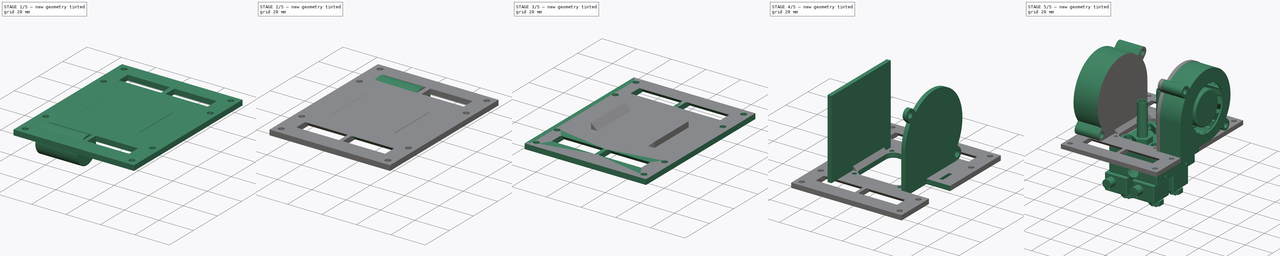
[diagram: build sequence overview — one tinted view per stage of 5, left to right]
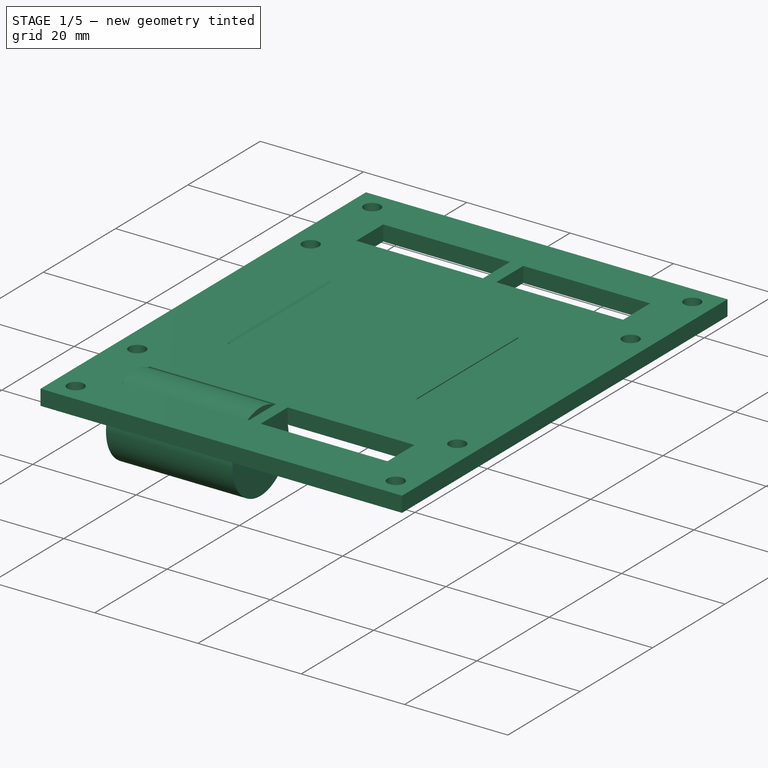
[diagram: stage 1 of 5 — iso view after this stage's code; geometry added in this stage tinted green]
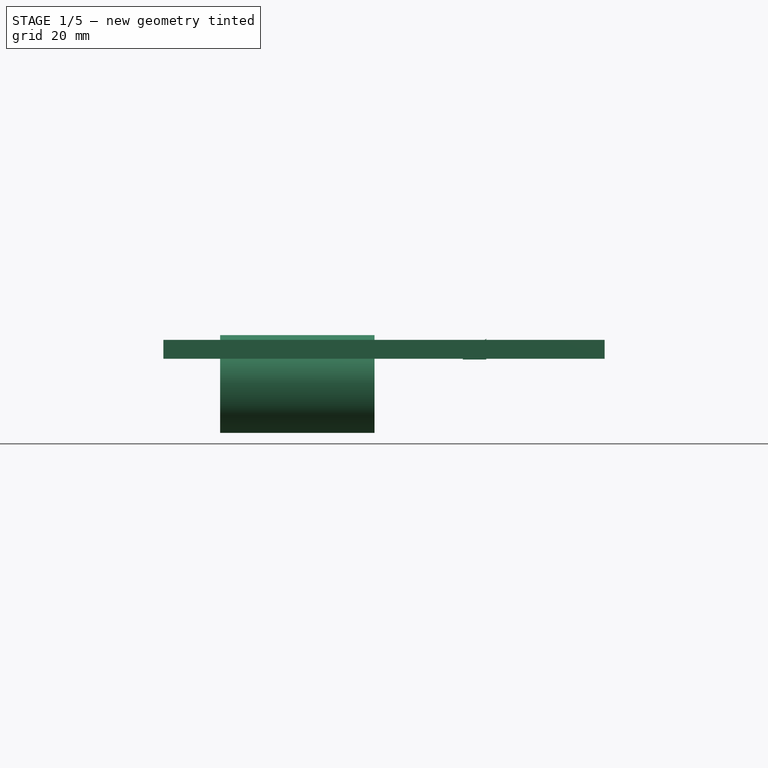
[diagram: stage 1 of 5 — front view after this stage's code; geometry added in this stage tinted green]
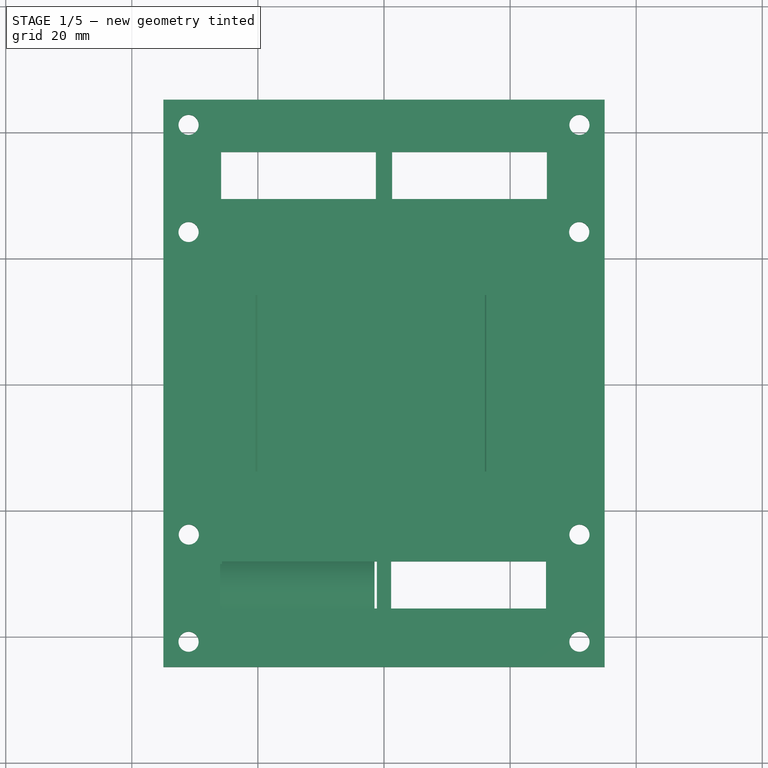
[diagram: stage 1 of 5 — top view after this stage's code; geometry added in this stage tinted green]
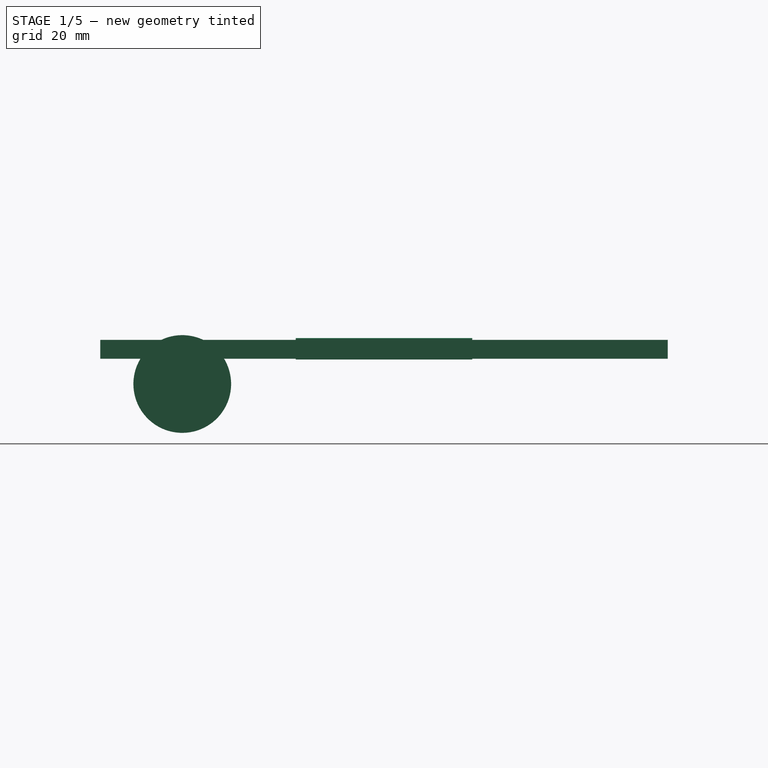
[diagram: stage 1 of 5 — right view after this stage's code; geometry added in this stage tinted green]
FCSTD DOCUMENT  (FreeCAD 0.16R4945 (Git))
Label: Kraken_Carriage
License: All rights reserved
LicenseURL: http://es.wikipedia.org/wiki/Todos_los_derechos_reservados
objects: Sketcher::SketchObject×8, App::FeaturePython×8, PartDesign::Pocket×5, Part::Cylinder×4, Part::Cut×4, PartDesign::Pad×3, Part::Compound×2, Part::FeaturePython×1, App::DocumentObjectGroup×1
note: 35 computed .brp shape members not serialized (recipe doc carries the construction recipe); baked Part::Feature solids carry a one-line shape summary decoded from their .brp

FEATURE [Sketcher::SketchObject] Sketch
  sketch-geometry (4):
    g0: LineSegment StartX=-35 StartY=45 StartZ=0 EndX=35 EndY=45 EndZ=0
    g1: LineSegment StartX=35 StartY=45 StartZ=0 EndX=35 EndY=-45 EndZ=0
    g2: LineSegment StartX=35 StartY=-45 StartZ=0 EndX=-35 EndY=-45 EndZ=0
    g3: LineSegment StartX=-35 StartY=-45 StartZ=0 EndX=-35 EndY=45 EndZ=0
  constraints (11):
    c: Coincident(g0,g1)
    c: Coincident(g1,g2)
    c: Coincident(g2,g3)
    c: Coincident(g3,g0)
    c: Horizontal(g0)
    c: Horizontal(g2)
    c: Vertical(g1)
    c: Vertical(g3)
    c: Symmetric(g0,g1,g-1)
    c: DistanceX(g0) = 70
    c: DistanceY(g1) = -90
FEATURE [PartDesign::Pad] Pad
  Length = 3
  Length2 = 100
  Sketch = -> Sketch
  Type = 0
FEATURE [Sketcher::SketchObject] Sketch001
  Placement = pos=(0,0,3) rot=(0,0,1;0rad)
  Support = -> Pad [Face6]
  sketch-geometry (24):
    g0: LineSegment StartX=-25.8394 StartY=36.6871 StartZ=0 EndX=-1.28258 EndY=36.6871 EndZ=0
    g1: LineSegment StartX=-1.28258 StartY=36.6871 StartZ=0 EndX=-1.28258 EndY=29.2169 EndZ=0
    g2: LineSegment StartX=-1.28258 StartY=29.2169 StartZ=0 EndX=-25.8394 EndY=29.2169 EndZ=0
    g3: LineSegment StartX=-25.8394 StartY=29.2169 StartZ=0 EndX=-25.8394 EndY=36.6871 EndZ=0
    g4: LineSegment StartX=1.28258 StartY=36.6871 StartZ=0 EndX=25.8394 EndY=36.6871 EndZ=0
    g5: LineSegment StartX=25.8394 StartY=36.6871 StartZ=0 EndX=25.8394 EndY=29.2169 EndZ=0
    g6: LineSegment StartX=25.8394 StartY=29.2169 StartZ=0 EndX=1.28258 EndY=29.2169 EndZ=0
    g7: LineSegment StartX=1.28258 StartY=29.2169 StartZ=0 EndX=1.28258 EndY=36.6871 EndZ=0
    g8: LineSegment StartX=-25.6951 StartY=-28.2572 StartZ=0 EndX=-1.1383 EndY=-28.2572 EndZ=0
    g9: LineSegment StartX=-1.1383 StartY=-28.2572 StartZ=0 EndX=-1.1383 EndY=-35.7275 EndZ=0
    g10: LineSegment StartX=-1.1383 StartY=-35.7275 StartZ=0 EndX=-25.6951 EndY=-35.7275 EndZ=0
    g11: LineSegment StartX=-25.6951 StartY=-35.7275 StartZ=0 EndX=-25.6951 EndY=-28.2572 EndZ=0
    g12: LineSegment StartX=1.1383 StartY=-28.2572 StartZ=0 EndX=25.6951 EndY=-28.2572 EndZ=0
    g13: LineSegment StartX=25.6951 StartY=-28.2572 StartZ=0 EndX=25.6951 EndY=-35.7275 EndZ=0
    g14: LineSegment StartX=25.6951 StartY=-35.7275 StartZ=0 EndX=1.1383 EndY=-35.7275 EndZ=0
    g15: LineSegment StartX=1.1383 StartY=-35.7275 StartZ=0 EndX=1.1383 EndY=-28.2572 EndZ=0
    g16: Circle CenterX=-31 CenterY=41 CenterZ=0 NormalX=0 NormalY=0 NormalZ=1 Radius=1.6
    g17: Circle CenterX=31 CenterY=40.9976 CenterZ=0 NormalX=0 NormalY=0 NormalZ=1 Radius=1.6
    g18: Circle CenterX=30.9627 CenterY=23.9976 CenterZ=0 NormalX=0 NormalY=0 NormalZ=1 Radius=1.6
    g19: Circle CenterX=-30.9627 CenterY=-23.9976 CenterZ=0 NormalX=0 NormalY=0 NormalZ=1 Radius=1.6
    g20: Circle CenterX=-31 CenterY=-40.9976 CenterZ=0 NormalX=0 NormalY=0 NormalZ=1 Radius=1.6
    g21: Circle CenterX=31 CenterY=-24.0024 CenterZ=0 NormalX=0 NormalY=0 NormalZ=1 Radius=1.6
    g22: Circle CenterX=31 CenterY=-41 CenterZ=0 NormalX=0 NormalY=0 NormalZ=1 Radius=1.6
    g23: Circle CenterX=-31 CenterY=24.0024 CenterZ=0 NormalX=0 NormalY=0 NormalZ=1 Radius=1.6
  constraints (56):
    c: Coincident(g0,g1)
    c: Coincident(g1,g2)
    c: Coincident(g2,g3)
    c: Coincident(g3,g0)
    c: Horizontal(g0)
    c: Horizontal(g2)
    c: Vertical(g1)
    c: Vertical(g3)
    c: Coincident(g4,g5)
    c: Coincident(g5,g6)
    c: Coincident(g6,g7)
    c: Coincident(g7,g4)
    c: Horizontal(g4)
    c: Horizontal(g6)
    c: Vertical(g5)
    c: Vertical(g7)
    c: Coincident(g8,g9)
    c: Coincident(g9,g10)
    c: Coincident(g10,g11)
    c: Coincident(g11,g8)
    c: Horizontal(g8)
    c: Horizontal(g10)
    c: Vertical(g9)
    c: Vertical(g11)
    c: Coincident(g12,g13)
    c: Coincident(g13,g14)
    c: Coincident(g14,g15)
    c: Coincident(g15,g12)
    c: Horizontal(g12)
    c: Horizontal(g14)
    c: Vertical(g13)
    c: Vertical(g15)
    c: Radius(g16) = 1.6
    c: Equal(g18,g17)
    c: Equal(g17,g19)
    c: Equal(g19,g20)
    c: Equal(g20,g22)
    c: Equal(g22,g21)
    c: Symmetric(g20,g17,g-1)
    c: Symmetric(g16,g22,g-1)
    c: Symmetric(g18,g19,g-1)
    c: Equal(g0,g4)
    c: Equal(g4,g8)
    c: Equal(g8,g12)
    c: Equal(g15,g5)
    c: Equal(g5,g1)
    c: Equal(g1,g9)
    c: Symmetric(g0,g4,g-2)
    c: Symmetric(g8,g12,g-2)
    c: Distance(g20,g22) = 62
    c: Distance(g19,g20) = 17
    c: Distance(g21,g18) = 48
    c: Radius(g23) = 1.6
    c: DistanceX(g-1,g22) = 31
    c: DistanceX(g23,g20) = 0
    c: Distance(g23,g19) = 48
FEATURE [PartDesign::Pocket] Pocket
  Length = 5
  Sketch = -> Sketch001
  Type = 1
FEATURE [Part::Cylinder] Cylinder  label="Cilindro"
  Angle = 360
  Height = 24.5
  Placement = pos=(-26,-32,-4) rot=(0,1,0;1.5708rad)
  Radius = 7.75
FEATURE [Sketcher::SketchObject] Sketch008
  Placement = pos=(0,-14,0) rot=(-1,0,0;4.71239rad)
  sketch-geometry (6):
    g0: LineSegment StartX=-20.4015 StartY=-0.118897 StartZ=0 EndX=-16.7428 EndY=-0.118897 EndZ=0
    g1: LineSegment StartX=-20.4015 StartY=-0.118897 StartZ=0 EndX=-20.4015 EndY=3.28896 EndZ=0
    g2: LineSegment StartX=-20.4015 StartY=3.28896 StartZ=0 EndX=-16.7428 EndY=-0.118897 EndZ=0
    g3: LineSegment StartX=12.4678 StartY=-0.104017 StartZ=0 EndX=16.2231 EndY=-0.104017 EndZ=0
    g4: LineSegment StartX=16.2231 StartY=-0.104017 StartZ=0 EndX=16.2231 EndY=3.19712 EndZ=0
    g5: LineSegment StartX=12.4678 StartY=-0.104017 StartZ=0 EndX=16.2231 EndY=3.19712 EndZ=0
  constraints (12):
    c: Horizontal(g0)
    c: Coincident(g1,g0)
    c: Vertical(g1)
    c: Coincident(g2,g1)
    c: Coincident(g2,g0)
    c: Horizontal(g3)
    c: Coincident(g4,g3)
    c: Vertical(g4)
    c: Coincident(g5,g3)
    c: Coincident(g5,g4)
    c: Distance(g2) = 5
    c: Distance(g5) = 5
FEATURE [PartDesign::Pad] Pad002
  Length = 28
  Length2 = 100
  Placement = pos=(0,-14,0) rot=(-1,0,0;4.71239rad)
  Reversed = true
  Sketch = -> Sketch008
  Type = 0
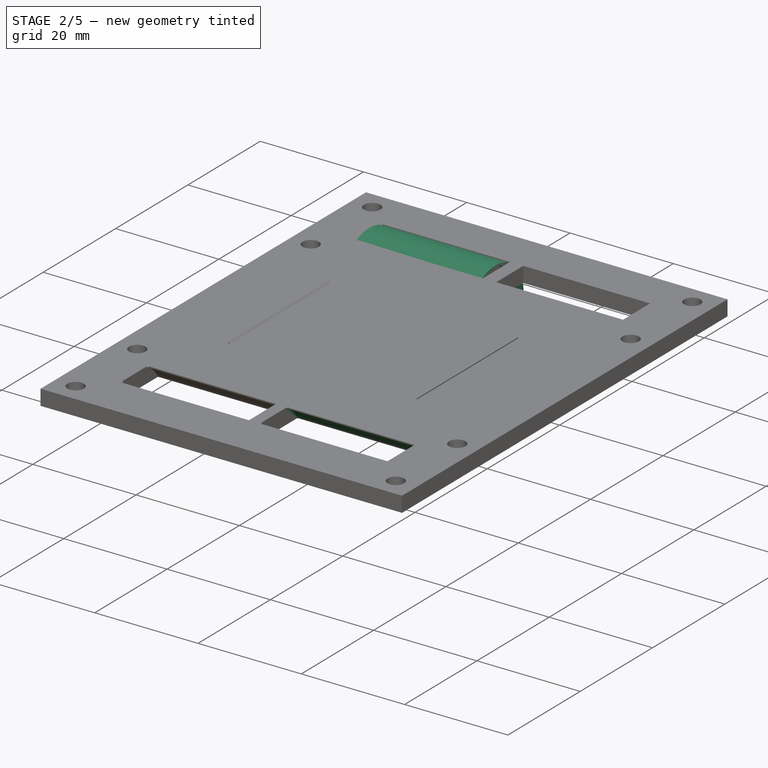
[diagram: stage 2 of 5 — iso view after this stage's code; geometry added in this stage tinted green]
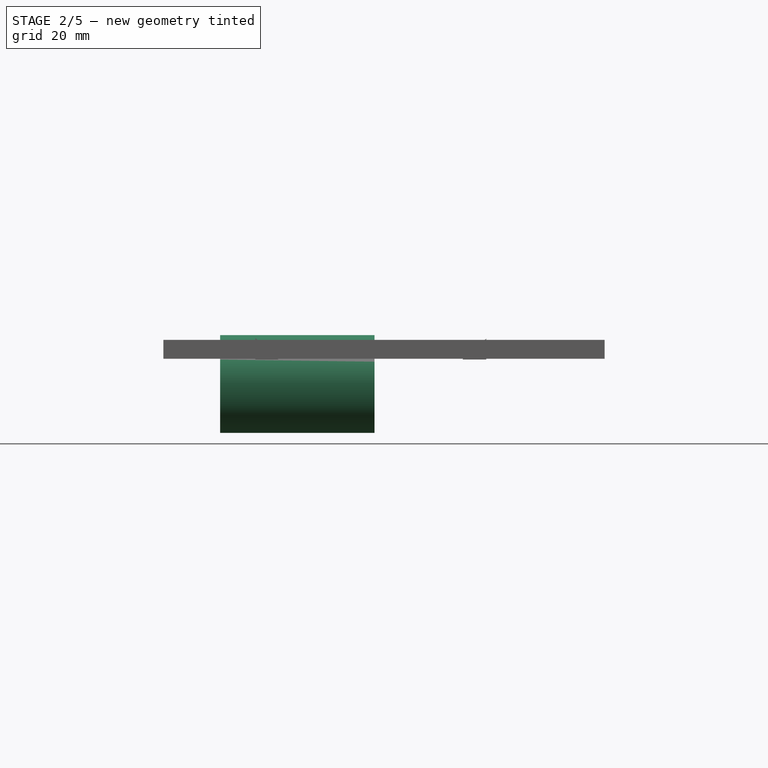
[diagram: stage 2 of 5 — front view after this stage's code; geometry added in this stage tinted green]
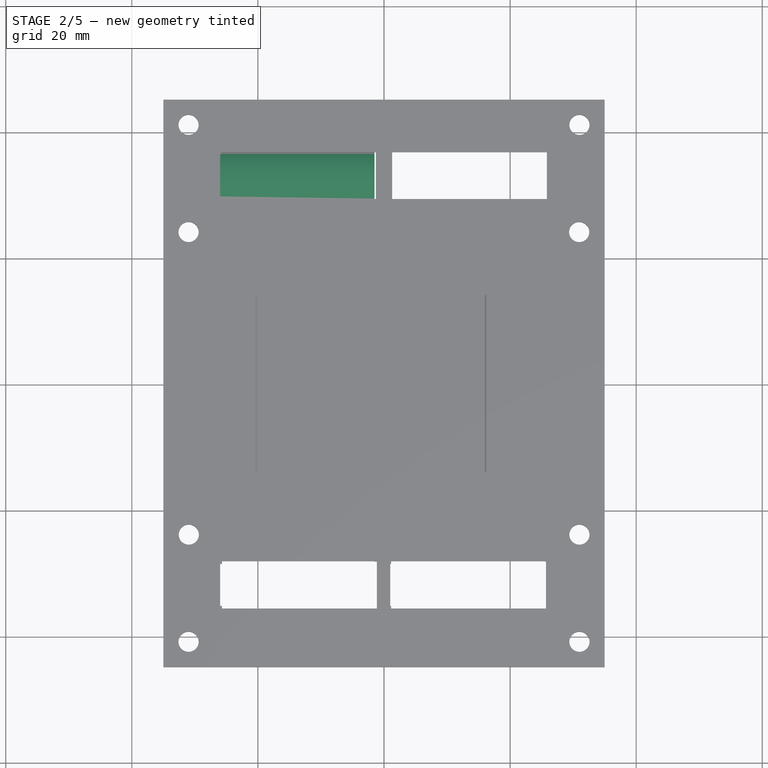
[diagram: stage 2 of 5 — top view after this stage's code; geometry added in this stage tinted green]
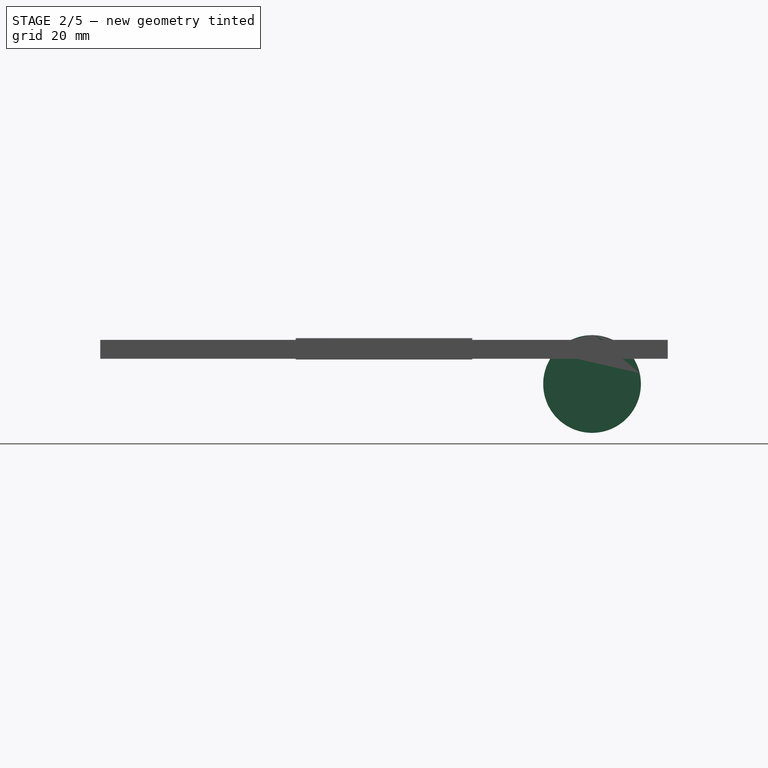
[diagram: stage 2 of 5 — right view after this stage's code; geometry added in this stage tinted green]
FEATURE [Part::Cylinder] Cylinder001  label="Cilindro001"
  Angle = 360
  Height = 24.5
  Placement = pos=(1,-32,-4) rot=(0,1,0;1.5708rad)
  Radius = 7.75
FEATURE [Part::Cylinder] Cylinder002  label="Cilindro002"
  Angle = 360
  Height = 24.5
  Placement = pos=(-26,33,-4) rot=(0,1,0;1.5708rad)
  Radius = 7.75
FEATURE [Part::Cut] Cut
  Base = -> Pocket
  Tool = -> Cylinder
FEATURE [Part::Cut] Cut001
  Base = -> Cut
  Tool = -> Cylinder001
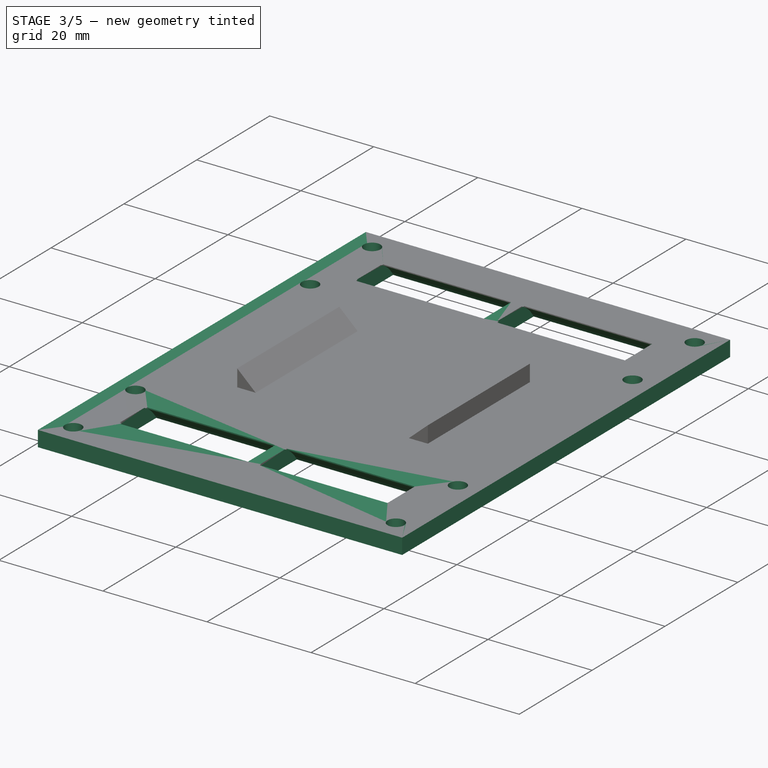
[diagram: stage 3 of 5 — iso view after this stage's code; geometry added in this stage tinted green]
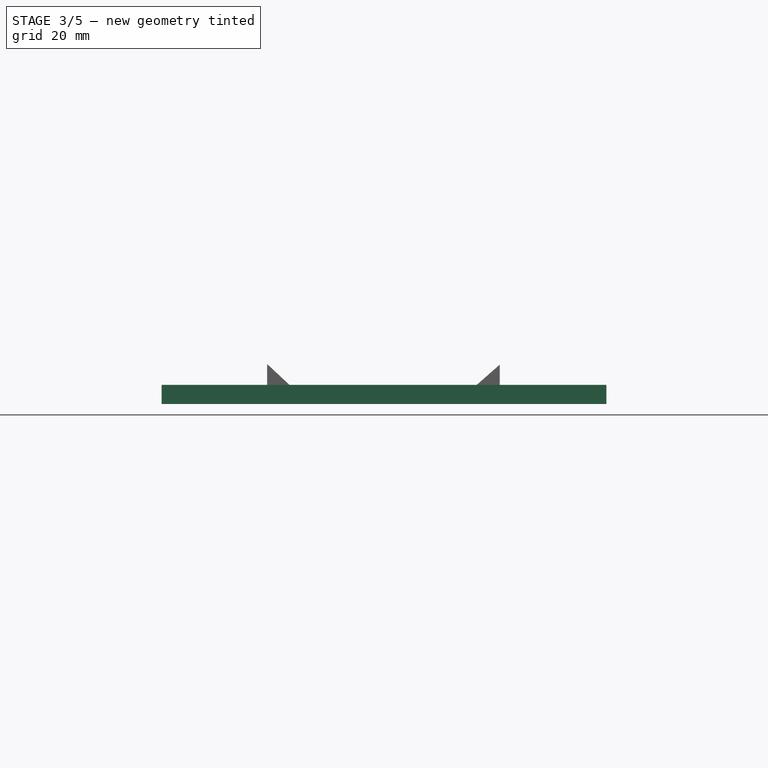
[diagram: stage 3 of 5 — front view after this stage's code; geometry added in this stage tinted green]
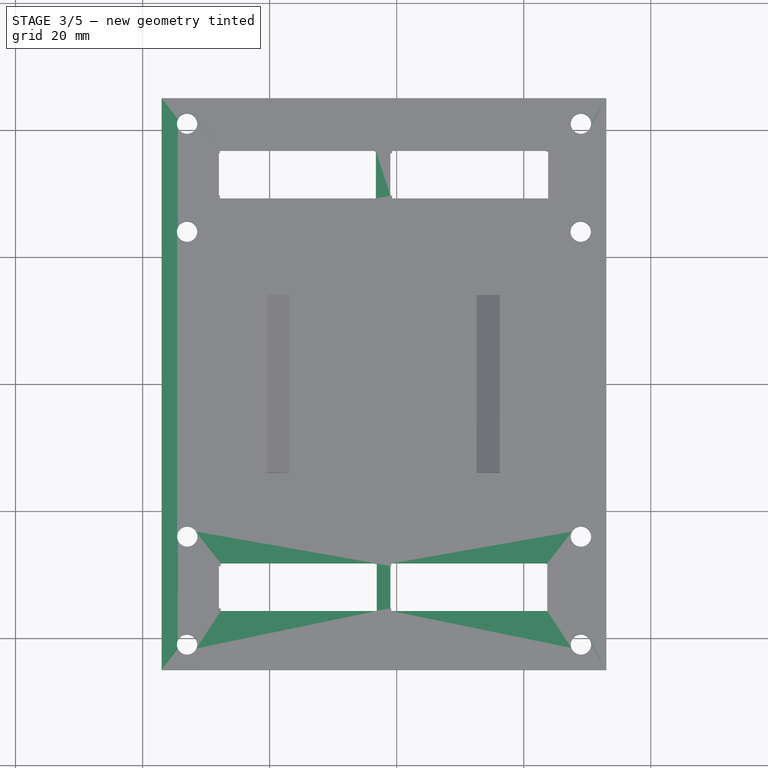
[diagram: stage 3 of 5 — top view after this stage's code; geometry added in this stage tinted green]
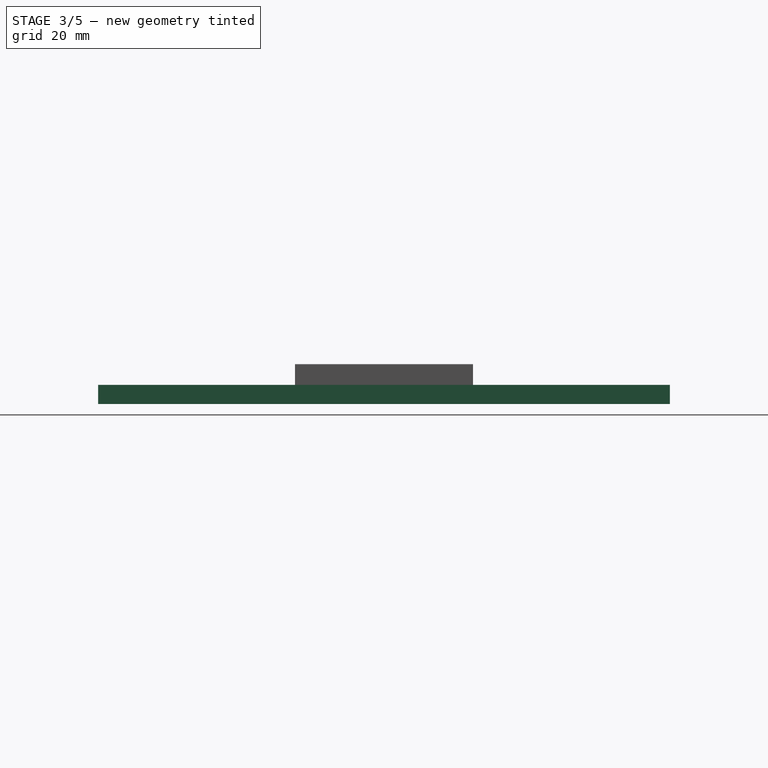
[diagram: stage 3 of 5 — right view after this stage's code; geometry added in this stage tinted green]
FEATURE [Part::Cylinder] Cylinder003  label="Cilindro003"
  Angle = 360
  Height = 24.5
  Placement = pos=(1,33,-4) rot=(0,1,0;1.5708rad)
  Radius = 7.75
FEATURE [Part::Cut] Cut002
  Base = -> Cut001
  Tool = -> Cylinder002
FEATURE [Part::Cut] Cut003
  Base = -> Cut002
  Placement = pos=(-2,0,-3) rot=(0,0,1;0rad)
  Tool = -> Cylinder003
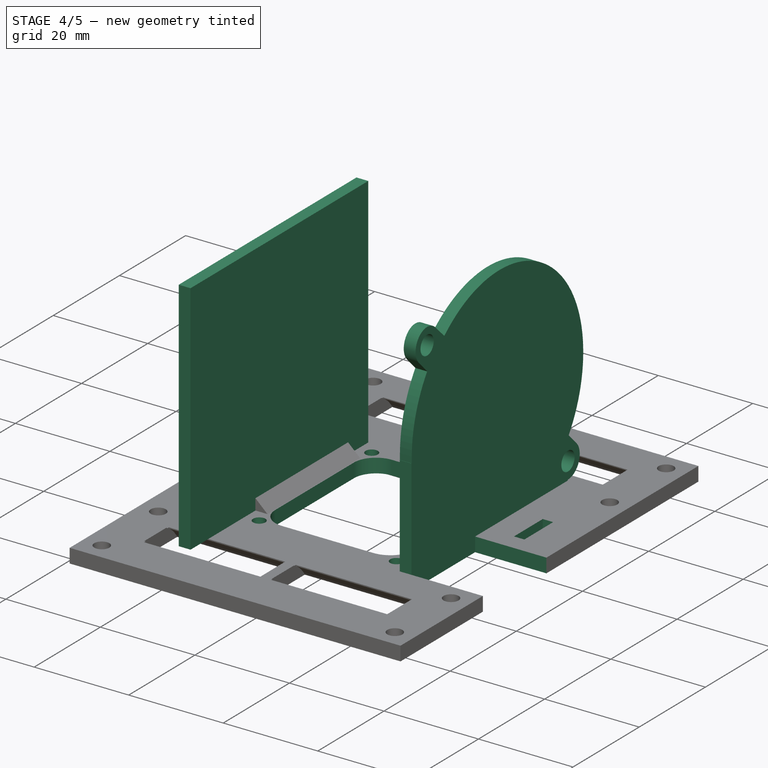
[diagram: stage 4 of 5 — iso view after this stage's code; geometry added in this stage tinted green]
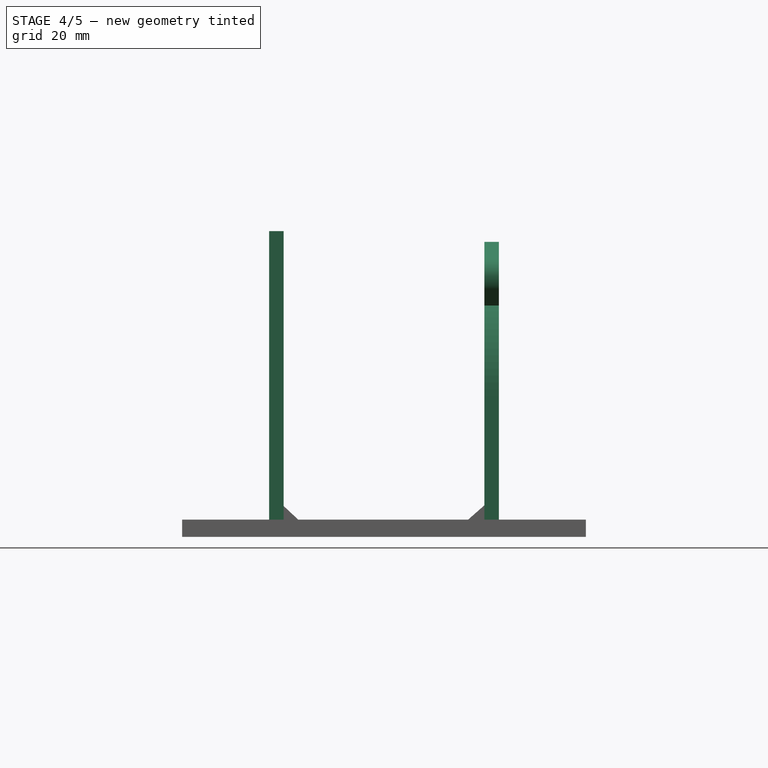
[diagram: stage 4 of 5 — front view after this stage's code; geometry added in this stage tinted green]
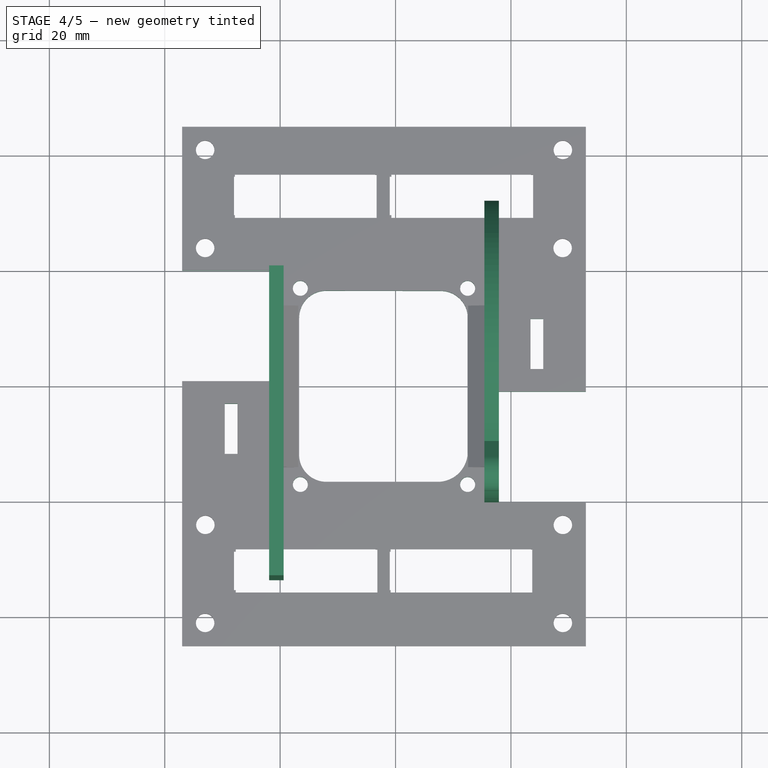
[diagram: stage 4 of 5 — top view after this stage's code; geometry added in this stage tinted green]
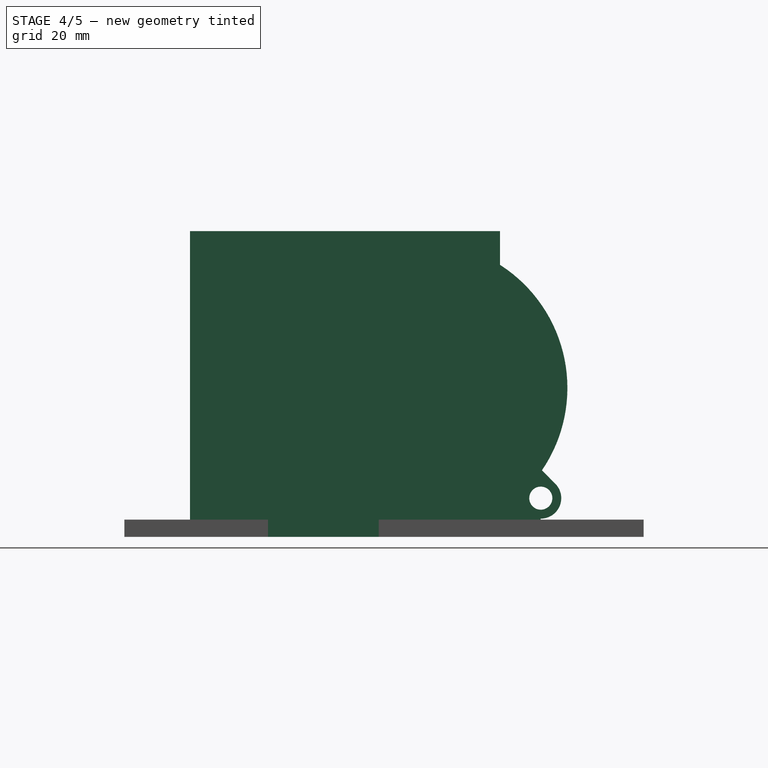
[diagram: stage 4 of 5 — right view after this stage's code; geometry added in this stage tinted green]
FEATURE [App::FeaturePython] planeConstraint01  # a2plus constraint (typed FeaturePython)
  Object1 = Kraken_01
  Object2 = Cut003
  SubElement1 = Face33
  SubElement2 = Face4
  Type = plane
  directionConstraint = 1
  offset = 0
FEATURE [App::FeaturePython] planeConstraint02  # a2plus constraint (typed FeaturePython)
  Object1 = Cut003
  Object2 = Kraken_01
  SubElement1 = Face6
  SubElement2 = Face31
  Type = plane
  directionConstraint = 1
  offset = 25
FEATURE [App::FeaturePython] planeConstraint03  # a2plus constraint (typed FeaturePython)
  Object1 = Cut003
  Object2 = Kraken_01
  SubElement1 = Face3
  SubElement2 = Face32
  Type = plane
  directionConstraint = 0
  offset = 17.5
FEATURE [Sketcher::SketchObject] Sketch002
  Placement = pos=(-2,0,0) rot=(0,0,1;0rad)
  Support = -> Cut003 [Face5]
  sketch-geometry (12):
    g0: LineSegment StartX=-14.7 StartY=11.88 StartZ=0 EndX=-14.7192 EndY=-11.8033 EndZ=0
    g1: LineSegment StartX=14.5107 StartY=11.5048 StartZ=0 EndX=14.5107 EndY=-11.3395 EndZ=0
    g2: LineSegment StartX=-9.994 StartY=16.5899 StartZ=0 EndX=9.83053 EndY=16.5645 EndZ=0
    g3: LineSegment StartX=-10.0039 StartY=-16.5444 StartZ=0 EndX=9.30583 EndY=-16.5444 EndZ=0
    g4: ArcOfCircle CenterX=-10 CenterY=11.8899 CenterZ=0 NormalX=0 NormalY=0 NormalZ=1 Radius=4.7 StartAngle=1.56952 EndAngle=3.1437
    g5: ArcOfCircle CenterX=9.82452 CenterY=11.8645 CenterZ=0 NormalX=0 NormalY=0 NormalZ=1 Radius=4.7 StartAngle=6.20656 EndAngle=7.8527
    g6: ArcOfCircle CenterX=-9.9819 CenterY=-11.8071 CenterZ=0 NormalX=0 NormalY=0 NormalZ=1 Radius=4.73732 StartAngle=3.14078 EndAngle=4.70775
    g7: ArcOfCircle CenterX=9.30583 CenterY=-11.3395 CenterZ=0 NormalX=0 NormalY=0 NormalZ=1 Radius=5.2049 StartAngle=4.71239 EndAngle=6.28319
    g8: Circle CenterX=-14.5 CenterY=17 CenterZ=0 NormalX=0 NormalY=0 NormalZ=1 Radius=1.3
    g9: Circle CenterX=14.5 CenterY=17 CenterZ=0 NormalX=0 NormalY=0 NormalZ=1 Radius=1.3
    g10: Circle CenterX=-14.5 CenterY=-17 CenterZ=0 NormalX=0 NormalY=0 NormalZ=1 Radius=1.3
    g11: Circle CenterX=14.5 CenterY=-17 CenterZ=0 NormalX=0 NormalY=0 NormalZ=1 Radius=1.3
  constraints (30):
    c: Vertical(g1)
    c: Horizontal(g3)
    c: Coincident(g4,g0)
    c: Coincident(g4,g2)
    c: DistanceX(g-1,g0) = -14.7
    c: Tangent(g4,g2)
    c: Coincident(g5,g1)
    c: Coincident(g5,g2)
    c: Radius(g4) = 4.7
    c: Radius(g5) = 4.7
    c: Tangent(g5,g2)
    c: Coincident(g6,g3)
    c: Coincident(g6,g0)
    c: Coincident(g7,g3)
    c: Coincident(g7,g1)
    c: Tangent(g7,g3)
    c: Tangent(g7,g1)
    c: Tangent(g6,g0)
    c: Radius(g8) = 1.3
    c: DistanceY(g-1,g8) = 17
    c: DistanceX(g-1,g8) = -14.5
    c: Radius(g9) = 1.3
    c: Radius(g10) = 1.3
    c: Radius(g11) = 1.3
    c: DistanceX(g-1,g9) = 14.5
    c: DistanceX(g-1,g10) = -14.5
    c: DistanceX(g-1,g11) = 14.5
    c: DistanceY(g-1,g9) = 17
    c: DistanceY(g-1,g11) = -17
    c: DistanceY(g-1,g10) = -17
FEATURE [PartDesign::Pocket] Pocket001
  Length = 5
  Placement = pos=(-2,0,-3) rot=(0,0,1;0rad)
  Sketch = -> Sketch002
  Type = 0
FEATURE [App::FeaturePython] planeConstraint07  # a2plus constraint (typed FeaturePython)
  Object1 = Compound006
  Object2 = Kraken_01
  SubElement1 = Face60
  SubElement2 = Face32
  Type = plane
  directionConstraint = 1
  offset = 2.5
FEATURE [App::FeaturePython] planeConstraint08  # a2plus constraint (typed FeaturePython)
  Object1 = Compound006
  Object2 = Kraken_01
  SubElement1 = Face18
  SubElement2 = Face31
  Type = plane
  directionConstraint = 1
  offset = 0
FEATURE [Sketcher::SketchObject] Sketch003
  ExternalGeometry = -> [Pocket001]
  Placement = pos=(-2,0,-3) rot=(1,0,0;3.14159rad)
  Support = -> Pocket001 [Face4]
  sketch-geometry (16):
    g0: LineSegment StartX=19.9 StartY=20.1 StartZ=0 EndX=39.9 EndY=20.1 EndZ=0
    g1: LineSegment StartX=39.9 StartY=20.1 StartZ=0 EndX=39.9 EndY=0.9 EndZ=0
    g2: LineSegment StartX=39.9 StartY=0.9 StartZ=0 EndX=19.9 EndY=0.9 EndZ=0
    g3: LineSegment StartX=19.9 StartY=0.9 StartZ=0 EndX=19.9 EndY=20.1 EndZ=0
    g4: LineSegment StartX=25.4 StartY=-3 StartZ=0 EndX=27.6 EndY=-3 EndZ=0
    g5: LineSegment StartX=27.6 StartY=-3 StartZ=0 EndX=27.6 EndY=-11.7 EndZ=0
    g6: LineSegment StartX=27.6 StartY=-11.7 StartZ=0 EndX=25.4 EndY=-11.7 EndZ=0
    g7: LineSegment StartX=25.4 StartY=-11.7 StartZ=0 EndX=25.4 EndY=-3 EndZ=0
    g8: LineSegment StartX=-27.6 StartY=11.7 StartZ=0 EndX=-25.4 EndY=11.7 EndZ=0
    g9: LineSegment StartX=-25.4 StartY=11.7 StartZ=0 EndX=-25.4 EndY=3 EndZ=0
    g10: LineSegment StartX=-25.4 StartY=3 StartZ=0 EndX=-27.6 EndY=3 EndZ=0
    g11: LineSegment StartX=-27.6 StartY=3 StartZ=0 EndX=-27.6 EndY=11.7 EndZ=0
    g12: LineSegment StartX=-39.9 StartY=-0.9 StartZ=0 EndX=-19.9 EndY=-0.9 EndZ=0
    g13: LineSegment StartX=-19.9 StartY=-0.9 StartZ=0 EndX=-19.9 EndY=-20.1 EndZ=0
    g14: LineSegment StartX=-19.9 StartY=-20.1 StartZ=0 EndX=-39.9 EndY=-20.1 EndZ=0
    g15: LineSegment StartX=-39.9 StartY=-20.1 StartZ=0 EndX=-39.9 EndY=-0.9 EndZ=0
  constraints (48):
    c: Coincident(g0,g1)
    c: Coincident(g1,g2)
    c: Coincident(g2,g3)
    c: Coincident(g3,g0)
    c: Horizontal(g0)
    c: Horizontal(g2)
    c: Vertical(g1)
    c: Vertical(g3)
    c: Coincident(g4,g5)
    c: Coincident(g5,g6)
    c: Coincident(g6,g7)
    c: Coincident(g7,g4)
    c: Horizontal(g4)
    c: Horizontal(g6)
    c: Vertical(g5)
    c: Vertical(g7)
    c: Distance(g5) = 8.7
    c: Distance(g4) = 2.2
    c: DistanceY(g-1,g4) = -3
    c: DistanceX(g-1,g4) = 25.4
    c: Coincident(g8,g9)
    c: Coincident(g9,g10)
    c: Coincident(g10,g11)
    c: Coincident(g11,g8)
    c: Horizontal(g8)
    c: Horizontal(g10)
    c: Vertical(g9)
    c: Vertical(g11)
    c: Distance(g10) = 2.2
    c: Distance(g11) = 8.7
    c: DistanceY(g-1,g9) = 3
    c: DistanceX(g-1,g9) = -25.4
    c: DistanceY(g-1,g2) = 0.9
    c: Distance(g3) = 19.2
    c: DistanceX(g-2,g2) = 19.9
    c: Distance(g0) = 20
    c: Coincident(g12,g13)
    c: Coincident(g13,g14)
    c: Coincident(g14,g15)
    c: Coincident(g15,g12)
    c: Horizontal(g12)
    c: Horizontal(g14)
    c: Vertical(g13)
    c: Vertical(g15)
    c: DistanceY(g-1,g12) = -0.9
    c: DistanceX(g-1,g12) = -19.9
    c: Distance(g15) = 19.2
    c: Distance(g14) = 20
FEATURE [PartDesign::Pocket] Pocket002
  Length = 5
  Placement = pos=(-2,0,-3) rot=(0,0,1;0rad)
  Sketch = -> Sketch003
  Type = 0
FEATURE [Sketcher::SketchObject] Sketch004
  ExternalGeometry = -> [Pocket002]
  Placement = pos=(-2,0,0) rot=(0,0,1;0rad)
  Support = -> Pocket002 [Face5]
  sketch-geometry (8):
    g0: LineSegment StartX=-19.9 StartY=20.1 StartZ=0 EndX=-17.4 EndY=20.1 EndZ=0
    g1: LineSegment StartX=-17.4 StartY=20.1 StartZ=0 EndX=-17.4 EndY=-33.6167 EndZ=0
    g2: LineSegment StartX=-17.4 StartY=-33.6167 StartZ=0 EndX=-19.9 EndY=-33.6167 EndZ=0
    g3: LineSegment StartX=-19.9 StartY=-33.6167 StartZ=0 EndX=-19.9 EndY=20.1 EndZ=0
    g4: LineSegment StartX=19.9 StartY=32.3808 StartZ=0 EndX=17.4 EndY=32.3808 EndZ=0
    g5: LineSegment StartX=17.4 StartY=32.3808 StartZ=0 EndX=17.4 EndY=-20.1 EndZ=0
    g6: LineSegment StartX=17.4 StartY=-20.1 StartZ=0 EndX=19.9 EndY=-20.1 EndZ=0
    g7: LineSegment StartX=19.9 StartY=-20.1 StartZ=0 EndX=19.9 EndY=32.3808 EndZ=0
  constraints (22):
    c: Coincident(g0,g1)
    c: Coincident(g1,g2)
    c: Coincident(g2,g3)
    c: Coincident(g3,g0)
    c: Horizontal(g0)
    c: Horizontal(g2)
    c: Vertical(g1)
    c: Vertical(g3)
    c: Coincident(g4,g5)
    c: Coincident(g5,g6)
    c: Coincident(g6,g7)
    c: Coincident(g7,g4)
    c: Horizontal(g4)
    c: Horizontal(g6)
    c: Vertical(g5)
    c: Vertical(g7)
    c: Distance(g2,g1) = 2.5
    c: Distance(g5,g6) = 2.5
    c: PointOnObject(g-7,g7)
    c: PointOnObject(g-8,g3)
    c: Coincident(g6,g-7)
    c: Coincident(g0,g-8)
FEATURE [PartDesign::Pad] Pad001
  Length = 50
  Length2 = 100
  Placement = pos=(-2,0,-3) rot=(0,0,1;0rad)
  Sketch = -> Sketch004
  Type = 0
FEATURE [Sketcher::SketchObject] Sketch005
  ExternalGeometry = -> [Pad001]
  Placement = pos=(15.4,0,-3) rot=(0.57735,-0.57735,-0.57735;2.0944rad)
  Support = -> Pad001 [Face78]
  sketch-geometry (17):
    g0: ArcOfCircle CenterX=-6.45599 CenterY=25.8188 CenterZ=0 NormalX=0 NormalY=0 NormalZ=1 Radius=25.33 StartAngle=0.853629 EndAngle=3.74004
    g1: LineSegment StartX=-27.3838 StartY=11.5489 StartZ=0 EndX=-29.7001 EndY=9.20095 EndZ=0
    g2: ArcOfCircle CenterX=-27.1765 CenterY=6.7114 CenterZ=0 NormalX=0 NormalY=0 NormalZ=1 Radius=3.54491 StartAngle=2.36298 EndAngle=4.72287
    g3: LineSegment StartX=-27.1394 StartY=3 StartZ=0 EndX=-35.1733 EndY=3 EndZ=0
    g4: LineSegment StartX=-35.1733 StartY=3 StartZ=0 EndX=-35.1733 EndY=58.6331 EndZ=0
    g5: LineSegment StartX=-1.78818 StartY=58.6331 StartZ=0 EndX=-35.1733 EndY=58.6331 EndZ=0
    g6: Circle CenterX=-27.1765 CenterY=6.7114 CenterZ=0 NormalX=0 NormalY=0 NormalZ=1 Radius=2
    g7: LineSegment StartX=20.0388 StartY=25.584 StartZ=0 EndX=20.052 EndY=24.2972 EndZ=0
    g8: LineSegment StartX=20.052 StartY=24.2972 StartZ=0 EndX=28.4151 EndY=24.2972 EndZ=0
    g9: LineSegment StartX=28.4151 StartY=24.2972 StartZ=0 EndX=28.4151 EndY=58.6331 EndZ=0
    g10: LineSegment StartX=28.4151 StartY=58.6331 StartZ=0 EndX=-1.78818 EndY=58.6331 EndZ=0
    g11: Circle CenterX=15.39 CenterY=45.1312 CenterZ=0 NormalX=0 NormalY=0 NormalZ=1 Radius=2
    g12: LineSegment StartX=10.1922 StartY=44.9093 StartZ=0 EndX=12.9172 EndY=47.5891 EndZ=0
    g13: ArcOfCircle CenterX=-5.74055 CenterY=25.3077 CenterZ=0 NormalX=0 NormalY=0 NormalZ=1 Radius=25.7808 StartAngle=0.0107152 EndAngle=0.611148
    g14: LineSegment StartX=-27.1394 StartY=3.16669 StartZ=0 EndX=-27.1394 EndY=3 EndZ=0
    g15: ArcOfCircle CenterX=15.39 CenterY=45.1312 CenterZ=0 NormalX=0 NormalY=0 NormalZ=1 Radius=3.48645 StartAngle=5.49117 EndAngle=8.6424
    g16: LineSegment StartX=15.3737 StartY=40.101 StartZ=0 EndX=17.8389 EndY=42.6497 EndZ=0
  constraints (32):
    c: Coincident(g1,g0)
    c: Horizontal(g3)
    c: PointOnObject(g-3,g3)
    c: Coincident(g4,g3)
    c: Vertical(g4)
    c: Coincident(g5,g4)
    c: Horizontal(g5)
    c: Coincident(g6,g2)
    c: Radius(g6) = 2
    c: Coincident(g7,g8)
    c: Horizontal(g8)
    c: Coincident(g8,g9)
    c: Vertical(g9)
    c: Coincident(g9,g10)
    c: Horizontal(g10)
    c: Radius(g11) = 2
    c: Coincident(g5,g10)
    c: Coincident(g0,g12)
    c: Tangent(g2,g1)
    c: Coincident(g13,g7)
    c: Coincident(g14,g3)
    c: Vertical(g14)
    c: Coincident(g15,g11)
    c: Coincident(g15,g12)
    c: Coincident(g16,g13)
    c: Coincident(g16,g15)
    c: Coincident(g1,g2)
    c: DistanceX(g2) = -27.1765
    c: DistanceY(g2) = 6.7114
    c: DistanceX(g1) = -29.7001
    c: DistanceY(g1) = 9.20095
    c: Coincident(g14,g2)
FEATURE [PartDesign::Pocket] Pocket003
  Length = 5
  Placement = pos=(-2,0,-3) rot=(0,0,1;0rad)
  Sketch = -> Sketch005
  Type = 0
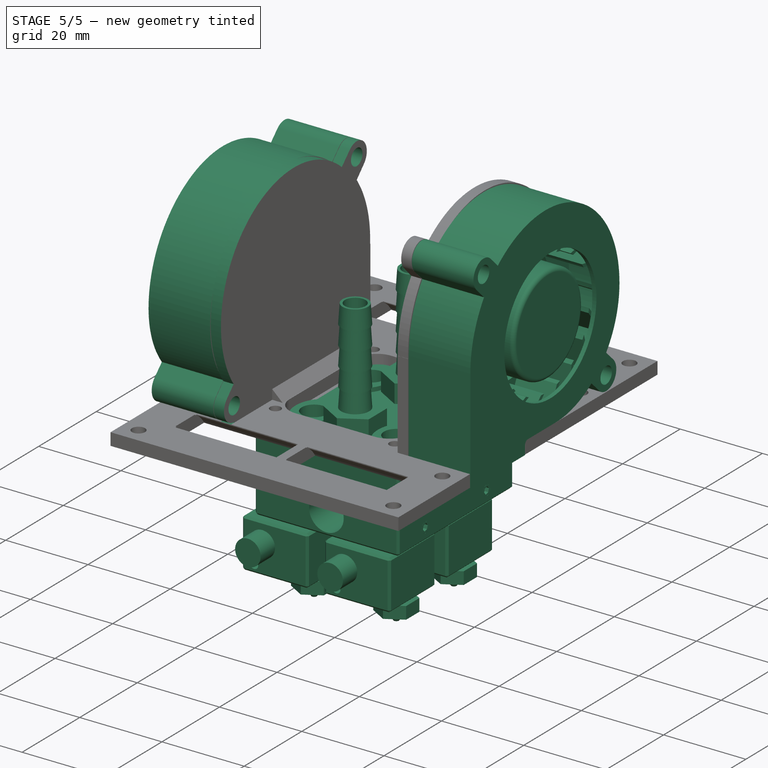
[diagram: stage 5 of 5 — iso view after this stage's code; geometry added in this stage tinted green]
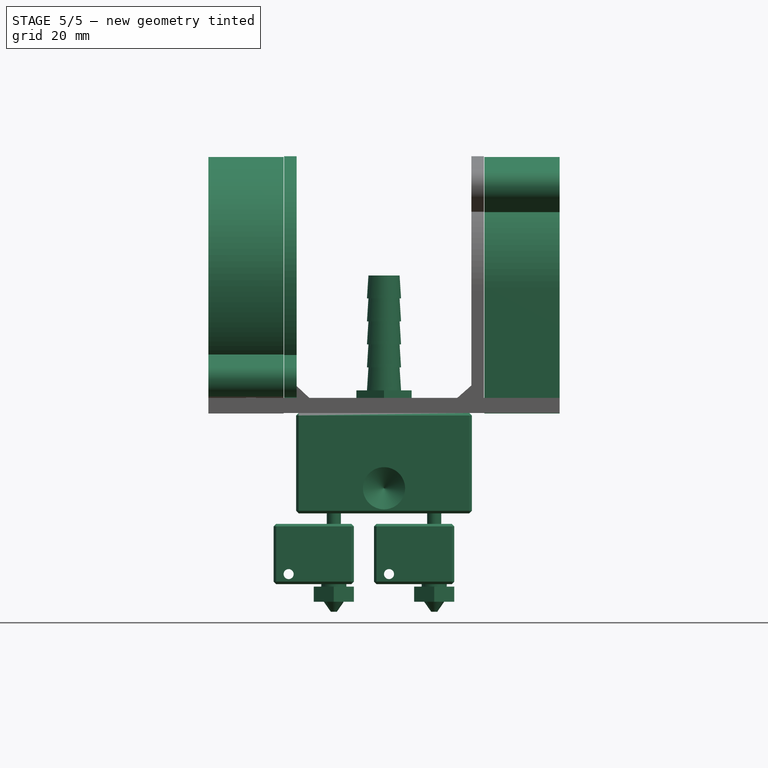
[diagram: stage 5 of 5 — front view after this stage's code; geometry added in this stage tinted green]
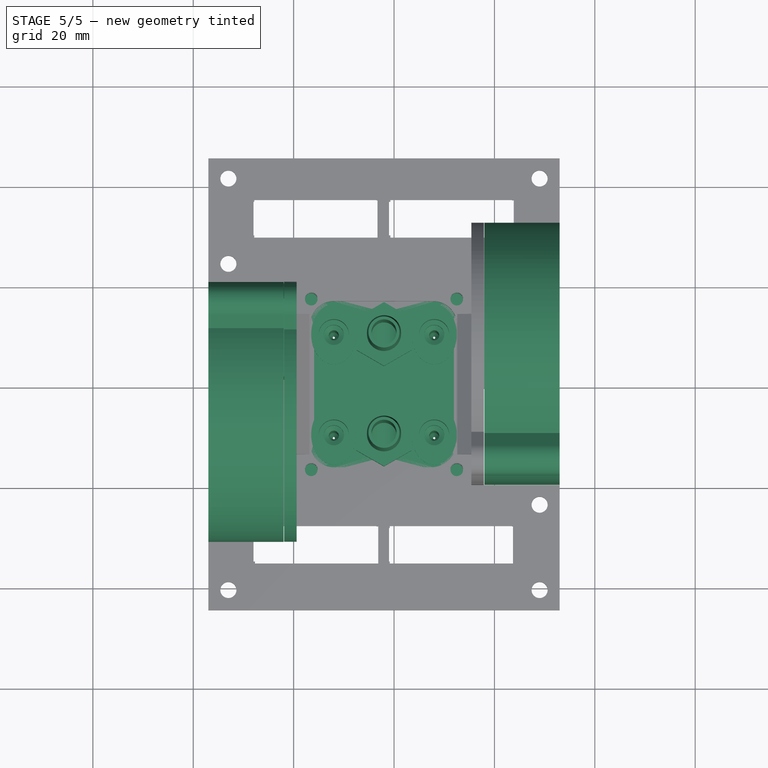
[diagram: stage 5 of 5 — top view after this stage's code; geometry added in this stage tinted green]
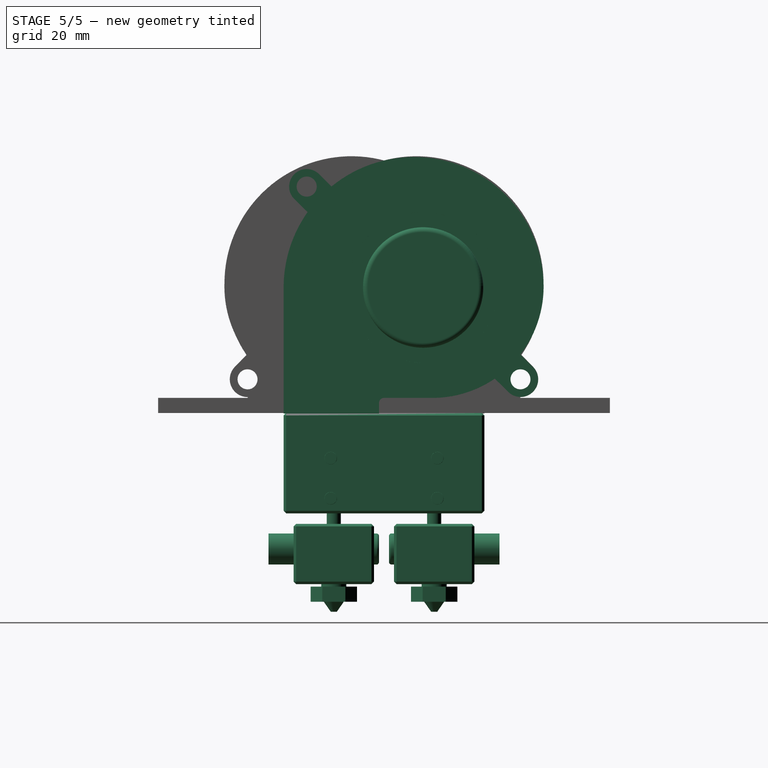
[diagram: stage 5 of 5 — right view after this stage's code; geometry added in this stage tinted green]
FEATURE [Part::FeaturePython] Kraken_01  # a2plus imported part (geometry in sourceFile) (typed FeaturePython)
  Placement = pos=(-2,0,-23) rot=(0.57735,0.57735,0.57735;2.0944rad)
  fixedPosition = true
  sourceFile = <userpath>/CloudStation/Hobbyprojekte/3D Drucker/CoreXY/Assembly/Parts/!Temp Folder/Hotend/Kraken.FCStd
  timeLastImport = 1444085950
  updateColors = true
FEATURE [Part::Compound] Compound005  label="C04H010007-blower-fan"
  Placement = pos=(-105.903,-482.514,-74.7507) rot=(0,-0.707107,-0.707107;3.14159rad)
FEATURE [App::FeaturePython] planeConstraint04  # a2plus constraint (typed FeaturePython)
  Object1 = Compound005
  Object2 = Kraken_01
  SubElement1 = Face60
  SubElement2 = Face30
  Type = plane
  directionConstraint = 1
  offset = 2.5
FEATURE [App::FeaturePython] planeConstraint05  # a2plus constraint (typed FeaturePython)
  Object1 = Compound005
  Object2 = Pocket001
  SubElement1 = Face29
  SubElement2 = Face5
  Type = plane
  directionConstraint = 1
  offset = 0
FEATURE [App::FeaturePython] planeConstraint06  # a2plus constraint (typed FeaturePython)
  Object1 = Compound005
  Object2 = Kraken_01
  SubElement1 = Face64
  SubElement2 = Face29
  Type = plane
  directionConstraint = 0
  offset = 0
FEATURE [Part::Compound] Compound006  label="C04H010007-blower-fan001"
  Placement = pos=(101.903,482.514,-74.7507) rot=(-1,0,0;4.71239rad)
FEATURE [App::DocumentObjectGroup] Grupo  label="rodamientos"
  Group = -> [Cut003,Pad,Pocket001,Pocket002,Pad001,Pocket003]
FEATURE [Sketcher::SketchObject] Sketch006
  ExternalGeometry = -> [Pad001]
  Placement = pos=(-19.4,0,-3) rot=(0.57735,0.57735,0.57735;2.0944rad)
  Support = -> Pocket003 [Face85]
  sketch-geometry (17):
    g0: ArcOfCircle CenterX=-6.45599 CenterY=25.8188 CenterZ=0 NormalX=0 NormalY=0 NormalZ=1 Radius=25.33 StartAngle=0.853629 EndAngle=3.74004
    g1: LineSegment StartX=-27.3838 StartY=11.5489 StartZ=0 EndX=-29.7001 EndY=9.20095 EndZ=0
    g2: ArcOfCircle CenterX=-27.1765 CenterY=6.7114 CenterZ=0 NormalX=0 NormalY=0 NormalZ=1 Radius=3.54491 StartAngle=2.36298 EndAngle=4.72287
    g3: LineSegment StartX=-27.1394 StartY=3 StartZ=0 EndX=-35.1733 EndY=3 EndZ=0
    g4: LineSegment StartX=-35.1733 StartY=3 StartZ=0 EndX=-35.1733 EndY=58.6331 EndZ=0
    g5: LineSegment StartX=-1.78818 StartY=58.6331 StartZ=0 EndX=-35.1733 EndY=58.6331 EndZ=0
    g6: Circle CenterX=-27.1765 CenterY=6.7114 CenterZ=0 NormalX=0 NormalY=0 NormalZ=1 Radius=2
    g7: LineSegment StartX=20.0388 StartY=25.584 StartZ=0 EndX=20.052 EndY=24.2972 EndZ=0
    g8: LineSegment StartX=20.052 StartY=24.2972 StartZ=0 EndX=28.4151 EndY=24.2972 EndZ=0
    g9: LineSegment StartX=28.4151 StartY=24.2972 StartZ=0 EndX=28.4151 EndY=58.6331 EndZ=0
    g10: LineSegment StartX=28.4151 StartY=58.6331 StartZ=0 EndX=-1.78818 EndY=58.6331 EndZ=0
    g11: Circle CenterX=15.39 CenterY=45.1312 CenterZ=0 NormalX=0 NormalY=0 NormalZ=1 Radius=2
    g12: LineSegment StartX=10.1922 StartY=44.9093 StartZ=0 EndX=12.9172 EndY=47.5891 EndZ=0
    g13: ArcOfCircle CenterX=-5.74055 CenterY=25.3077 CenterZ=0 NormalX=0 NormalY=0 NormalZ=1 Radius=25.7808 StartAngle=0.0107152 EndAngle=0.611148
    g14: LineSegment StartX=-27.1394 StartY=3.16669 StartZ=0 EndX=-27.1394 EndY=3 EndZ=0
    g15: ArcOfCircle CenterX=15.39 CenterY=45.1312 CenterZ=0 NormalX=0 NormalY=0 NormalZ=1 Radius=3.48645 StartAngle=5.49117 EndAngle=8.6424
    g16: LineSegment StartX=15.3737 StartY=40.101 StartZ=0 EndX=17.8389 EndY=42.6497 EndZ=0
  constraints (32):
    c: Coincident(g1,g0)
    c: Horizontal(g3)
    c: PointOnObject(g-3,g3)
    c: Coincident(g4,g3)
    c: Vertical(g4)
    c: Coincident(g5,g4)
    c: Horizontal(g5)
    c: Coincident(g6,g2)
    c: Radius(g6) = 2
    c: Coincident(g7,g8)
    c: Horizontal(g8)
    c: Coincident(g8,g9)
    c: Vertical(g9)
    c: Coincident(g9,g10)
    c: Horizontal(g10)
    c: Radius(g11) = 2
    c: Coincident(g5,g10)
    c: Coincident(g0,g12)
    c: Tangent(g2,g1)
    c: Coincident(g13,g7)
    c: Coincident(g14,g3)
    c: Vertical(g14)
    c: Coincident(g15,g11)
    c: Coincident(g15,g12)
    c: Coincident(g16,g13)
    c: Coincident(g16,g15)
    c: Coincident(g1,g2)
    c: DistanceX(g2) = -27.1765
    c: DistanceY(g2) = 6.7114
    c: DistanceX(g1) = -29.7001
    c: DistanceY(g1) = 9.20095
    c: Coincident(g14,g2)
FEATURE [PartDesign::Pocket] Pocket004
  Length = 5
  Placement = pos=(-2,0,-3) rot=(0,0,1;0rad)
  Sketch = -> Sketch006
  Type = 0
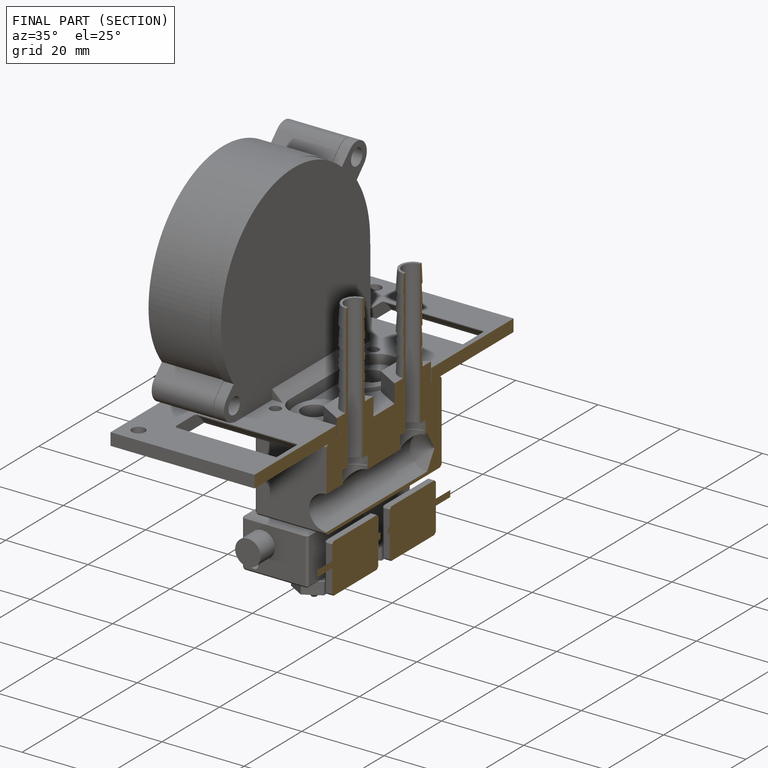
[diagram: finished part — half-section view (interior)]
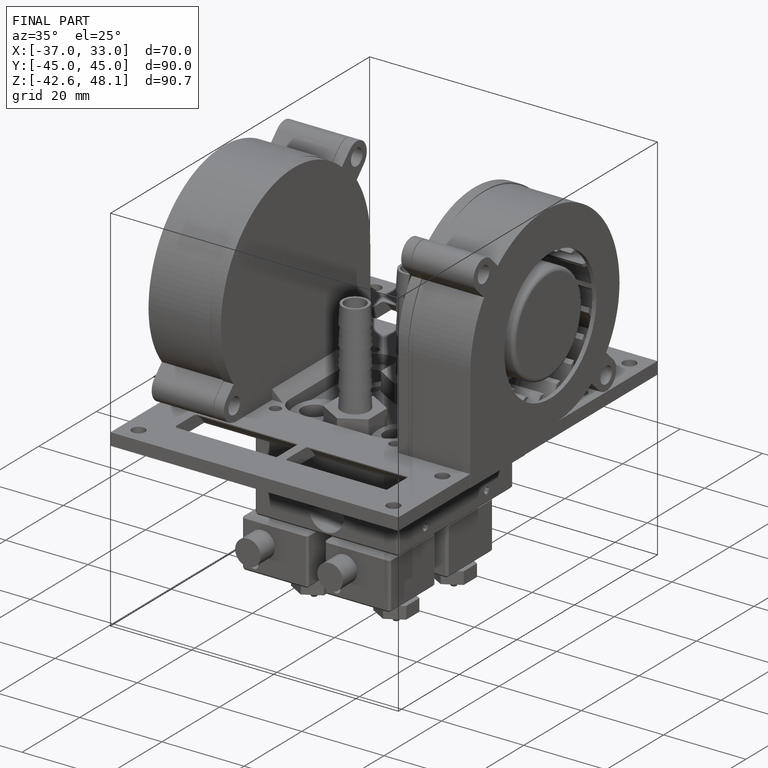
[diagram: finished part — iso view with bounding-box wireframe]
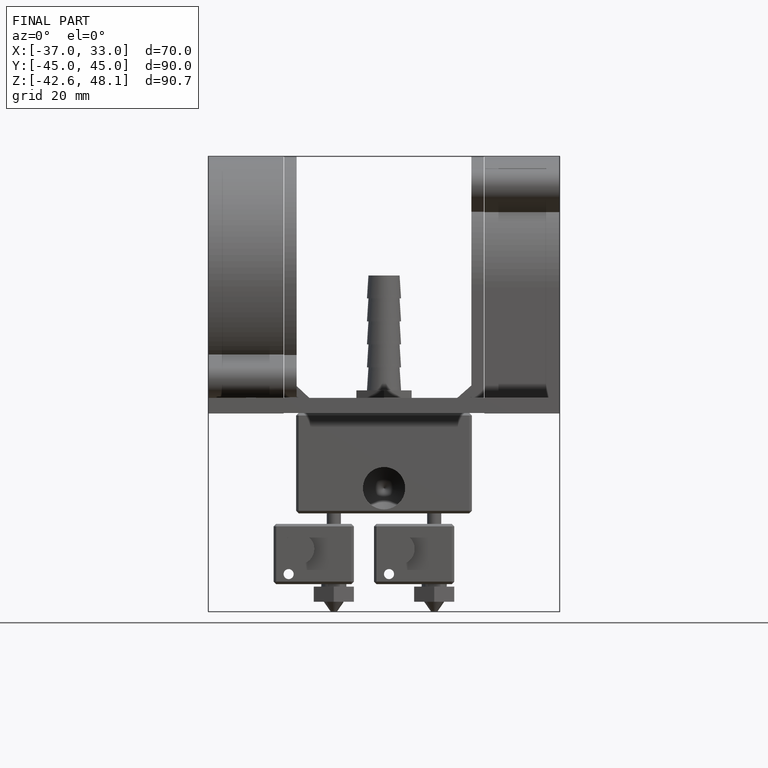
[diagram: finished part — front view with bounding-box wireframe]
